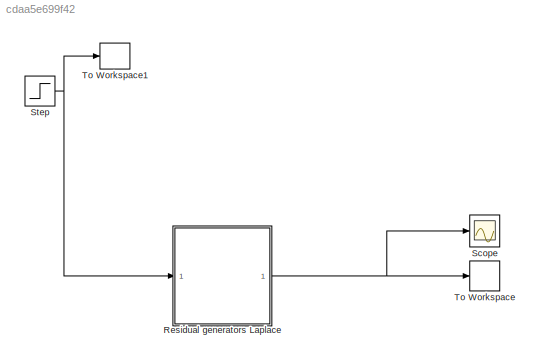
MODEL slx_cdaa5e699f42
KIND model
CONFIG AbsTol = auto
CONFIG EnableMultiTasking = off
CONFIG FixedStep = auto
CONFIG MaxStep = auto
CONFIG MinStep = auto
CONFIG RelTol = 1e-3
CONFIG SampleTimeConstraint = Unconstrained
CONFIG Solver = VariableStepAuto
CONFIG SolverName = VariableStepAuto
CONFIG StartTime = 0.0
CONFIG StopTime = simTime
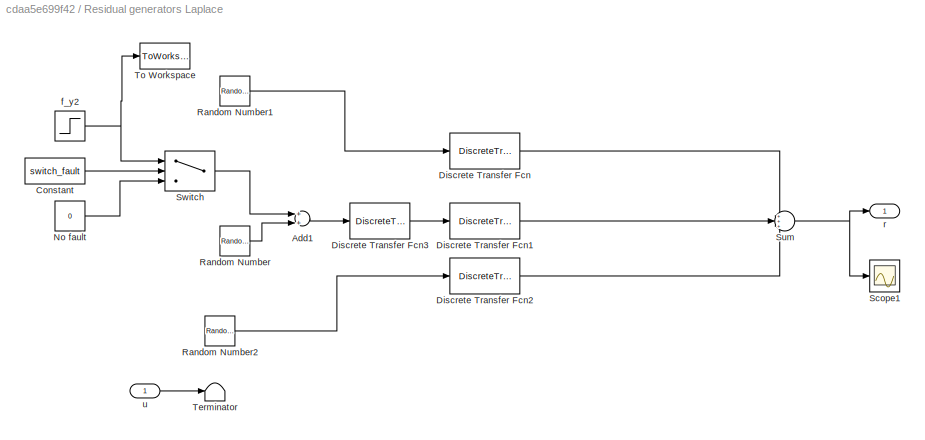
BLOCK [SubSystem] Residual generators Laplace
  Ports = [1, 1]
  RequestExecContextInheritance = off
BLOCK [Sum] Residual generators Laplace/Add1
  InputSameDT = off
  OutDataTypeStr = Inherit: Inherit via internal rule
  Ports = [2, 1]
  SaturateOnIntegerOverflow = off
BLOCK [Constant] Residual generators Laplace/Constant
  Value = switch_fault
BLOCK [DiscreteTransferFcn] Residual generators Laplace/Discrete Transfer Fcn
  Denominator = G_y1_d.Denominator{1,1}
  InputPortMap = u0
  Numerator = G_y1_d.Numerator{1,1}
  Ports = [1, 1]
BLOCK [DiscreteTransferFcn] Residual generators Laplace/Discrete Transfer Fcn1
  Denominator = G_y2_d.Denominator{1,1}
  InputPortMap = u0
  Numerator = G_y2_d.Numerator{1,1}
  Ports = [1, 1]
BLOCK [DiscreteTransferFcn] Residual generators Laplace/Discrete Transfer Fcn2
  Denominator = G_y3_d.Denominator{1,1}
  InputPortMap = u0
  Numerator = G_y3_d.Numerator{1,1}
  Ports = [1, 1]
BLOCK [DiscreteTransferFcn] Residual generators Laplace/Discrete Transfer Fcn3
  Denominator = [1]
  InputPortMap = u0
  Ports = [1, 1]
  SampleTime = 0.004
BLOCK [Constant] Residual generators Laplace/No fault
  Value = 0
BLOCK [RandomNumber] Residual generators Laplace/Random Number
  SampleTime = T_s
  Seed = 325
  Variance = sigma_1^2
BLOCK [RandomNumber] Residual generators Laplace/Random Number1
  SampleTime = T_s
  Seed = 2354363
  Variance = sigma_1^2
BLOCK [RandomNumber] Residual generators Laplace/Random Number2
  SampleTime = T_s
  Seed = 124
  Variance = sigma_1^2
BLOCK [Scope] Residual generators Laplace/Scope1
  Floating = off
  NumInputPorts = 1
  Ports = [1]
  ScopeSpecificationString = Simulink.scopes.TimeScopeBlockCfg('CurrentConfiguration', extmgr.ConfigurationSet(extmgr.Configuration('Core','General UI',true),extmgr.Configuration('Core','Source UI',true),extmgr.Configuration('Sources','WiredSimulink',true,'DataLoggingVariableName','ScopeData2'),extmgr.Configuration('Visuals','Time Domain',true,'SerializedDisplays',{struct('MinYLimReal','-5.06204','MaxYLimReal','4.84769','YLab...<+1446ch>
BLOCK [Sum] Residual generators Laplace/Sum
  IconShape = round
  InputSameDT = off
  Inputs = +++
  OutDataTypeStr = Inherit: Inherit via internal rule
  Ports = [3, 1]
  SaturateOnIntegerOverflow = off
BLOCK [Switch] Residual generators Laplace/Switch
  Criteria = u2 > Threshold
  InputSameDT = off
  SaturateOnIntegerOverflow = off
BLOCK [Terminator] Residual generators Laplace/Terminator
BLOCK [ToWorkspace] Residual generators Laplace/To Workspace
  FixptAsFi = on
  MaxDataPoints = inf
  Ports = [1]
  SampleTime = -1
  SaveFormat = Structure With Time
  VariableName = f_y2
BLOCK [Step] Residual generators Laplace/f_y2 
  After = f_m
  SampleTime = 0
  Time = f_m_time
BLOCK [Outport] Residual generators Laplace/r
  IconDisplay = Port number
BLOCK [Inport] Residual generators Laplace/u
  IconDisplay = Port number
BLOCK [Scope] Scope
  Floating = off
  NumInputPorts = 1
  Ports = [1]
  ScopeSpecificationString = Simulink.scopes.TimeScopeBlockCfg('CurrentConfiguration', extmgr.ConfigurationSet(extmgr.Configuration('Core','General UI',true),extmgr.Configuration('Core','Source UI',true),extmgr.Configuration('Sources','WiredSimulink',true,'DataLoggingVariableName','ScopeData1'),extmgr.Configuration('Visuals','Time Domain',true,'SerializedDisplays',{struct('MinYLimReal','-5.06204','MaxYLimReal','4.84769','YLab...<+1470ch>
BLOCK [Step] Step
  SampleTime = 0
  Time = 2
BLOCK [ToWorkspace] To Workspace 
  FixptAsFi = on
  MaxDataPoints = inf
  Ports = [1]
  SampleTime = -1
  SaveFormat = Structure With Time
  VariableName = r
BLOCK [ToWorkspace] To Workspace1
  FixptAsFi = on
  MaxDataPoints = inf
  Ports = [1]
  SampleTime = -1
  SaveFormat = Structure With Time
  VariableName = u
LINE Residual generators Laplace/Add1:1 -> Residual generators Laplace/Discrete Transfer Fcn3:1
LINE Residual generators Laplace/Constant:1 -> Residual generators Laplace/Switch:2
LINE Residual generators Laplace/Discrete Transfer Fcn1:1 -> Residual generators Laplace/Sum:2
LINE Residual generators Laplace/Discrete Transfer Fcn2:1 -> Residual generators Laplace/Sum:3
LINE Residual generators Laplace/Discrete Transfer Fcn3:1 -> Residual generators Laplace/Discrete Transfer Fcn1:1
LINE Residual generators Laplace/Discrete Transfer Fcn:1 -> Residual generators Laplace/Sum:1
LINE Residual generators Laplace/No fault:1 -> Residual generators Laplace/Switch:3
LINE Residual generators Laplace/Random Number1:1 -> Residual generators Laplace/Discrete Transfer Fcn:1
LINE Residual generators Laplace/Random Number2:1 -> Residual generators Laplace/Discrete Transfer Fcn2:1
LINE Residual generators Laplace/Random Number:1 -> Residual generators Laplace/Add1:2
NET Residual generators Laplace/Sum:1 -> Residual generators Laplace/Scope1:1, Residual generators Laplace/r:1
LINE Residual generators Laplace/Switch:1 -> Residual generators Laplace/Add1:1
NET Residual generators Laplace/f_y2 :1 -> Residual generators Laplace/Switch:1, Residual generators Laplace/To Workspace:1
LINE Residual generators Laplace/u:1 -> Residual generators Laplace/Terminator:1
NET Residual generators Laplace:1 -> Scope:1, To Workspace :1
NET Step:1 -> Residual generators Laplace:1, To Workspace1:1
note: NET lines group one-source signal fan-out (src -> all destinations, sorted); 1:1 wires keep LINE
